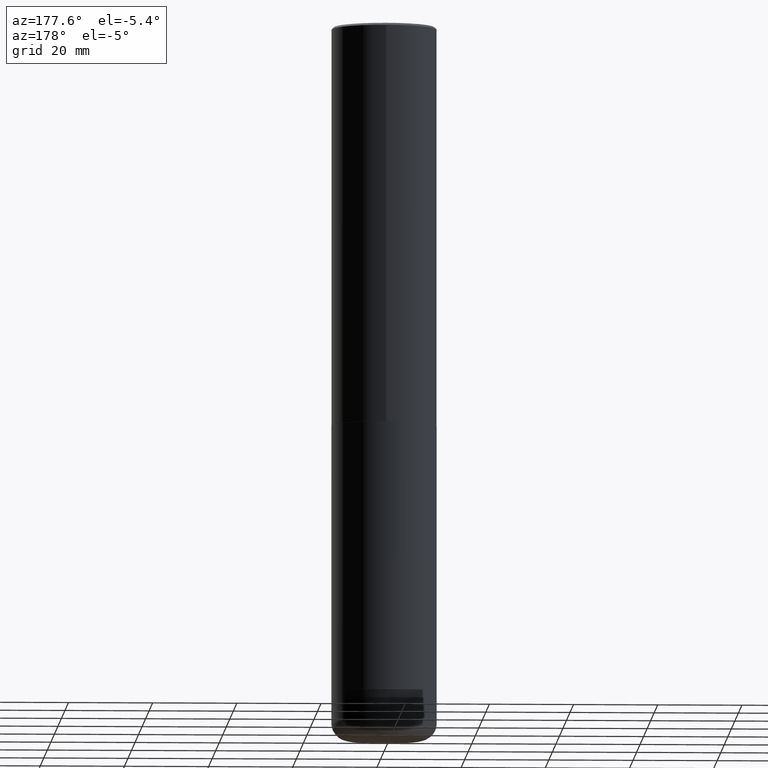
[diagram: clean part render]
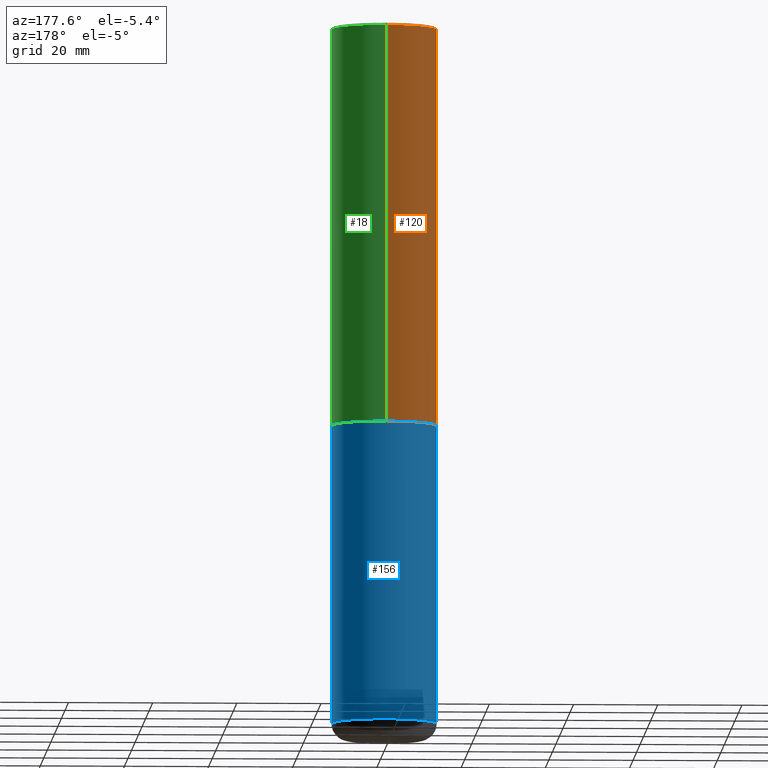
[diagram: same view with three faces highlighted in distinct colors, each labeled with its STEP entity id]
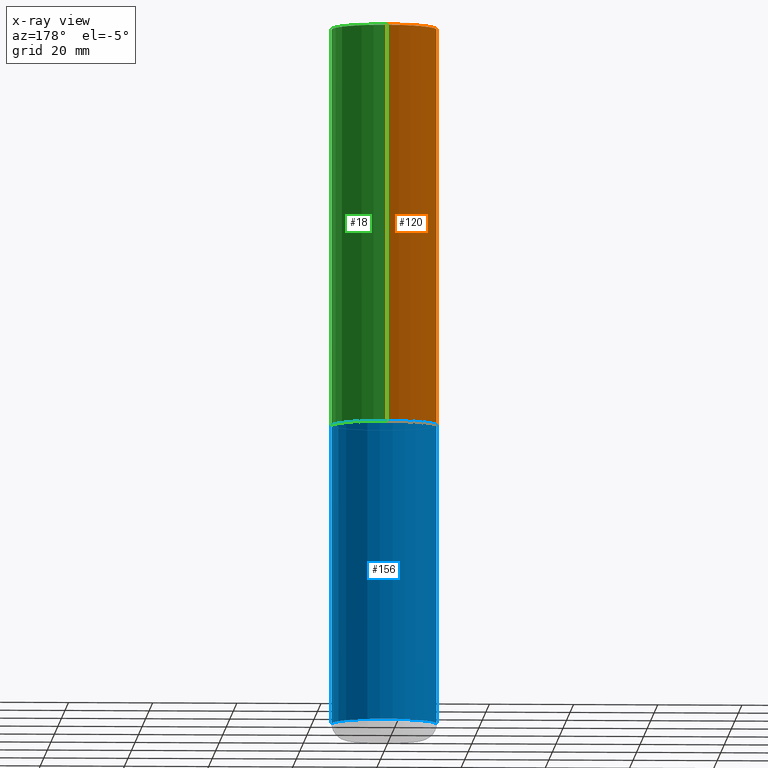
[diagram: x-ray of the same camera — body ghosted, the three highlighted faces saturated]
A machine part, auxiliary view with three faces highlighted in distinct colors.
The next image is the same camera in x-ray (body ghosted, the three faces saturated) — at least one of them is partly hidden behind the body in this view.
Their STEP definitions:

[orange] entity #120 — the highlighted cylindrical surface (partial cylindrical patch) has radius 12.5006 mm, axis along (-0, 0, 1).
#1 = VERTEX_POINT ( 'NONE', #140 ) ;
#2 = CIRCLE ( 'NONE', #259, 0.4921500000000003650 ) ;
#21 = DIRECTION ( 'NONE',  ( -2.445976594451651952E-29, 3.490754157143982552E-15, 1.000000000000000000 ) ) ;
#35 = VERTEX_POINT ( 'NONE', #398 ) ;
#39 = FACE_OUTER_BOUND ( 'NONE', #127, .T. ) ;
#40 = DIRECTION ( 'NONE',  ( -2.445976594451651952E-29, 3.490754157143982552E-15, 1.000000000000000000 ) ) ;
#47 = CARTESIAN_POINT ( 'NONE',  ( 0.000000000000000000, 0.000000000000000000, 0.000000000000000000 ) ) ;
#71 = CARTESIAN_POINT ( 'NONE',  ( 9.145751084314172604E-29, -1.305227886897706845E-14, -3.739100000000000534 ) ) ;
#78 = CYLINDRICAL_SURFACE ( 'NONE', #117, 0.4921500000000000874 ) ;
#90 = CARTESIAN_POINT ( 'NONE',  ( 3.496936074043333291E-15, 0.4921500000000000874, -1.717974658438411319E-15 ) ) ;
#99 = AXIS2_PLACEMENT_3D ( 'NONE', #341, #21, #277 ) ;
#117 = AXIS2_PLACEMENT_3D ( 'NONE', #47, #40, #301 ) ;
#120 = ADVANCED_FACE ( 'NONE', ( #39 ), #78, .T. ) ;
#127 = EDGE_LOOP ( 'NONE', ( #405, #146, #256, #194 ) ) ;
#140 = CARTESIAN_POINT ( 'NONE',  ( -3.376394089603257868E-15, -0.4921499999999999764, -0.01999999999999839059 ) ) ;
#146 = ORIENTED_EDGE ( 'NONE', *, *, #164, .T. ) ;
#163 = VERTEX_POINT ( 'NONE', #359 ) ;
#164 = EDGE_CURVE ( 'NONE', #353, #35, #2, .T. ) ;
#179 = EDGE_CURVE ( 'NONE', #163, #1, #324, .T. ) ;
#191 = EDGE_CURVE ( 'NONE', #353, #163, #348, .T. ) ;
#194 = ORIENTED_EDGE ( 'NONE', *, *, #179, .F. ) ;
#201 = DIRECTION ( 'NONE',  ( -2.445976594451651952E-29, 3.490754157143982552E-15, 1.000000000000000000 ) ) ;
#218 = LINE ( 'NONE', #319, #233 ) ;
#233 = VECTOR ( 'NONE', #344, 39.37007874015748143 ) ;
#256 = ORIENTED_EDGE ( 'NONE', *, *, #284, .T. ) ;
#259 = AXIS2_PLACEMENT_3D ( 'NONE', #71, #201, #332 ) ;
#277 = DIRECTION ( 'NONE',  ( -6.982962677686265922E-15, -1.000000000000000000, 3.486624039460257331E-15 ) ) ;
#284 = EDGE_CURVE ( 'NONE', #35, #1, #218, .T. ) ;
#301 = DIRECTION ( 'NONE',  ( -6.982962677686265922E-15, -1.000000000000000000, 3.490754157143982552E-15 ) ) ;
#302 = CARTESIAN_POINT ( 'NONE',  ( 3.496936074043380229E-15, 0.4921499999999873198, -3.739100000000002311 ) ) ;
#319 = CARTESIAN_POINT ( 'NONE',  ( -3.436665081823296565E-15, -0.4921500000000000874, 1.717974658438411319E-15 ) ) ;
#324 = CIRCLE ( 'NONE', #99, 0.4921499999999999209 ) ;
#332 = DIRECTION ( 'NONE',  ( -6.982962677686265922E-15, -1.000000000000000000, 3.330506545156063496E-15 ) ) ;
#335 = VECTOR ( 'NONE', #369, 39.37007874015748143 ) ;
#341 = CARTESIAN_POINT ( 'NONE',  ( 4.891953188903329688E-31, -6.981508314288001687E-17, -0.02000000000000010797 ) ) ;
#344 = DIRECTION ( 'NONE',  ( -2.445976594451651672E-29, 3.490754157143982552E-15, 1.000000000000000000 ) ) ;
#348 = LINE ( 'NONE', #90, #335 ) ;
#353 = VERTEX_POINT ( 'NONE', #302 ) ;
#359 = CARTESIAN_POINT ( 'NONE',  ( 3.436665081823295777E-15, 0.4921499999999998098, -0.02000000000000182188 ) ) ;
#369 = DIRECTION ( 'NONE',  ( -2.445976594451651672E-29, 3.490754157143982552E-15, 1.000000000000000000 ) ) ;
#398 = CARTESIAN_POINT ( 'NONE',  ( -3.436665081823207030E-15, -0.4921500000000134101, -3.739099999999998758 ) ) ;
#405 = ORIENTED_EDGE ( 'NONE', *, *, #191, .F. ) ;

[blue] entity #156 — the highlighted cylindrical surface (partial cylindrical patch) has radius 12.5006 mm, axis along (-0, 0, 1).
#5 = FACE_OUTER_BOUND ( 'NONE', #368, .T. ) ;
#7 = CIRCLE ( 'NONE', #226, 0.4921499999999999764 ) ;
#9 = DIRECTION ( 'NONE',  ( -2.445468806185136597E-29, 3.491481338843145583E-15, 1.000000000000000000 ) ) ;
#23 = CARTESIAN_POINT ( 'NONE',  ( 0.4921499999999999764, -1.649515443723054663E-14, -3.740100000000000424 ) ) ;
#24 = CARTESIAN_POINT ( 'NONE',  ( 1.598211683594234343E-28, -2.281822714187549288E-14, -6.535400000000000098 ) ) ;
#37 = CARTESIAN_POINT ( 'NONE',  ( 0.4921499999999999764, -2.625489222369879024E-14, -6.535400000000000098 ) ) ;
#75 = VECTOR ( 'NONE', #408, 39.37007874015748143 ) ;
#80 = LINE ( 'NONE', #285, #75 ) ;
#82 = ORIENTED_EDGE ( 'NONE', *, *, #168, .F. ) ;
#88 = CARTESIAN_POINT ( 'NONE',  ( -0.4921499999999999764, -1.444142217459804055E-14, -3.740100000000000424 ) ) ;
#96 = ORIENTED_EDGE ( 'NONE', *, *, #312, .T. ) ;
#97 = DIRECTION ( 'NONE',  ( -2.445468806185136597E-29, 3.491481338843145583E-15, 1.000000000000000000 ) ) ;
#101 = EDGE_CURVE ( 'NONE', #192, #197, #172, .T. ) ;
#113 = DIRECTION ( 'NONE',  ( 1.000000000000000000, -6.982962677686265133E-15, 0.000000000000000000 ) ) ;
#135 = CYLINDRICAL_SURFACE ( 'NONE', #355, 0.4921499999999999764 ) ;
#138 = DIRECTION ( 'NONE',  ( 1.000000000000000000, -6.982962677686265922E-15, 4.876176775795935793E-29 ) ) ;
#156 = ADVANCED_FACE ( 'NONE', ( #5 ), #135, .T. ) ;
#161 = AXIS2_PLACEMENT_3D ( 'NONE', #24, #97, #113 ) ;
#168 = EDGE_CURVE ( 'NONE', #326, #261, #80, .T. ) ;
#172 = LINE ( 'NONE', #234, #299 ) ;
#178 = ORIENTED_EDGE ( 'NONE', *, *, #208, .F. ) ;
#192 = VERTEX_POINT ( 'NONE', #209 ) ;
#197 = VERTEX_POINT ( 'NONE', #88 ) ;
#208 = EDGE_CURVE ( 'NONE', #261, #197, #7, .T. ) ;
#209 = CARTESIAN_POINT ( 'NONE',  ( -0.4921499999999999764, -1.932129106783216551E-14, -6.535400000000000098 ) ) ;
#226 = AXIS2_PLACEMENT_3D ( 'NONE', #247, #381, #339 ) ;
#234 = CARTESIAN_POINT ( 'NONE',  ( -0.4921499999999999764, 3.496936074043332897E-15, -2.420853904668951509E-29 ) ) ;
#247 = CARTESIAN_POINT ( 'NONE',  ( 9.146297882013029477E-29, -1.305848935540725085E-14, -3.740100000000000424 ) ) ;
#261 = VERTEX_POINT ( 'NONE', #23 ) ;
#264 = CARTESIAN_POINT ( 'NONE',  ( 0.000000000000000000, 0.000000000000000000, 0.000000000000000000 ) ) ;
#285 = CARTESIAN_POINT ( 'NONE',  ( 0.4921499999999999764, -3.436665081823295777E-15, 2.399810400207969603E-29 ) ) ;
#299 = VECTOR ( 'NONE', #336, 39.37007874015748143 ) ;
#312 = EDGE_CURVE ( 'NONE', #326, #192, #340, .T. ) ;
#326 = VERTEX_POINT ( 'NONE', #37 ) ;
#336 = DIRECTION ( 'NONE',  ( -2.445468806185136877E-29, 3.491481338843145188E-15, 1.000000000000000000 ) ) ;
#339 = DIRECTION ( 'NONE',  ( 1.000000000000000000, -6.982962677686265922E-15, 0.000000000000000000 ) ) ;
#340 = CIRCLE ( 'NONE', #161, 0.4921500000000000319 ) ;
#355 = AXIS2_PLACEMENT_3D ( 'NONE', #264, #9, #138 ) ;
#368 = EDGE_LOOP ( 'NONE', ( #96, #387, #178, #82 ) ) ;
#381 = DIRECTION ( 'NONE',  ( -2.445468806185136597E-29, 3.491481338843145583E-15, 1.000000000000000000 ) ) ;
#387 = ORIENTED_EDGE ( 'NONE', *, *, #101, .T. ) ;
#408 = DIRECTION ( 'NONE',  ( -2.445468806185136877E-29, 3.491481338843145188E-15, 1.000000000000000000 ) ) ;

[green] entity #18 — the highlighted cylindrical surface (partial cylindrical patch) has radius 12.5006 mm, axis along (-0, 0, 1).
#1 = VERTEX_POINT ( 'NONE', #140 ) ;
#6 = AXIS2_PLACEMENT_3D ( 'NONE', #393, #176, #395 ) ;
#18 = ADVANCED_FACE ( 'NONE', ( #391 ), #272, .T. ) ;
#19 = DIRECTION ( 'NONE',  ( -6.982962677686265922E-15, -1.000000000000000000, 3.486624039460257331E-15 ) ) ;
#35 = VERTEX_POINT ( 'NONE', #398 ) ;
#44 = EDGE_CURVE ( 'NONE', #35, #353, #246, .T. ) ;
#50 = DIRECTION ( 'NONE',  ( -2.445976594451651952E-29, 3.490754157143982552E-15, 1.000000000000000000 ) ) ;
#68 = CIRCLE ( 'NONE', #104, 0.4921499999999999209 ) ;
#90 = CARTESIAN_POINT ( 'NONE',  ( 3.496936074043333291E-15, 0.4921500000000000874, -1.717974658438411319E-15 ) ) ;
#104 = AXIS2_PLACEMENT_3D ( 'NONE', #243, #50, #19 ) ;
#125 = ORIENTED_EDGE ( 'NONE', *, *, #191, .T. ) ;
#140 = CARTESIAN_POINT ( 'NONE',  ( -3.376394089603257868E-15, -0.4921499999999999764, -0.01999999999999839059 ) ) ;
#163 = VERTEX_POINT ( 'NONE', #359 ) ;
#176 = DIRECTION ( 'NONE',  ( -2.445976594451651952E-29, 3.490754157143982552E-15, 1.000000000000000000 ) ) ;
#191 = EDGE_CURVE ( 'NONE', #353, #163, #348, .T. ) ;
#198 = ORIENTED_EDGE ( 'NONE', *, *, #284, .F. ) ;
#218 = LINE ( 'NONE', #319, #233 ) ;
#223 = ORIENTED_EDGE ( 'NONE', *, *, #44, .T. ) ;
#228 = AXIS2_PLACEMENT_3D ( 'NONE', #334, #356, #270 ) ;
#233 = VECTOR ( 'NONE', #344, 39.37007874015748143 ) ;
#241 = EDGE_CURVE ( 'NONE', #1, #163, #68, .T. ) ;
#243 = CARTESIAN_POINT ( 'NONE',  ( 4.891953188903329688E-31, -6.981508314288001687E-17, -0.02000000000000010797 ) ) ;
#246 = CIRCLE ( 'NONE', #228, 0.4921500000000003650 ) ;
#270 = DIRECTION ( 'NONE',  ( -6.982962677686265922E-15, -1.000000000000000000, 3.330506545156063496E-15 ) ) ;
#272 = CYLINDRICAL_SURFACE ( 'NONE', #6, 0.4921500000000000874 ) ;
#284 = EDGE_CURVE ( 'NONE', #35, #1, #218, .T. ) ;
#295 = EDGE_LOOP ( 'NONE', ( #223, #125, #346, #198 ) ) ;
#302 = CARTESIAN_POINT ( 'NONE',  ( 3.496936074043380229E-15, 0.4921499999999873198, -3.739100000000002311 ) ) ;
#319 = CARTESIAN_POINT ( 'NONE',  ( -3.436665081823296565E-15, -0.4921500000000000874, 1.717974658438411319E-15 ) ) ;
#334 = CARTESIAN_POINT ( 'NONE',  ( 9.145751084314172604E-29, -1.305227886897706845E-14, -3.739100000000000534 ) ) ;
#335 = VECTOR ( 'NONE', #369, 39.37007874015748143 ) ;
#344 = DIRECTION ( 'NONE',  ( -2.445976594451651672E-29, 3.490754157143982552E-15, 1.000000000000000000 ) ) ;
#346 = ORIENTED_EDGE ( 'NONE', *, *, #241, .F. ) ;
#348 = LINE ( 'NONE', #90, #335 ) ;
#353 = VERTEX_POINT ( 'NONE', #302 ) ;
#356 = DIRECTION ( 'NONE',  ( -2.445976594451651952E-29, 3.490754157143982552E-15, 1.000000000000000000 ) ) ;
#359 = CARTESIAN_POINT ( 'NONE',  ( 3.436665081823295777E-15, 0.4921499999999998098, -0.02000000000000182188 ) ) ;
#369 = DIRECTION ( 'NONE',  ( -2.445976594451651672E-29, 3.490754157143982552E-15, 1.000000000000000000 ) ) ;
#391 = FACE_OUTER_BOUND ( 'NONE', #295, .T. ) ;
#393 = CARTESIAN_POINT ( 'NONE',  ( 0.000000000000000000, 0.000000000000000000, 0.000000000000000000 ) ) ;
#395 = DIRECTION ( 'NONE',  ( -6.982962677686265922E-15, -1.000000000000000000, 3.490754157143982552E-15 ) ) ;
#398 = CARTESIAN_POINT ( 'NONE',  ( -3.436665081823207030E-15, -0.4921500000000134101, -3.739099999999998758 ) ) ;